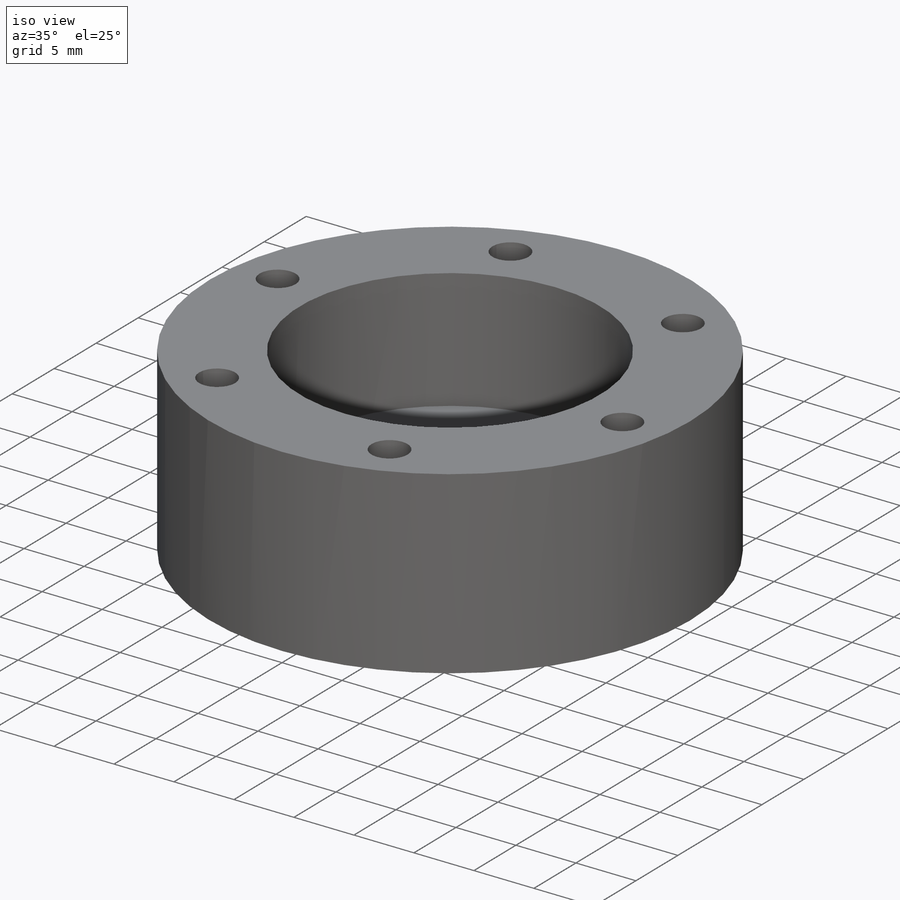
[diagram: iso view]
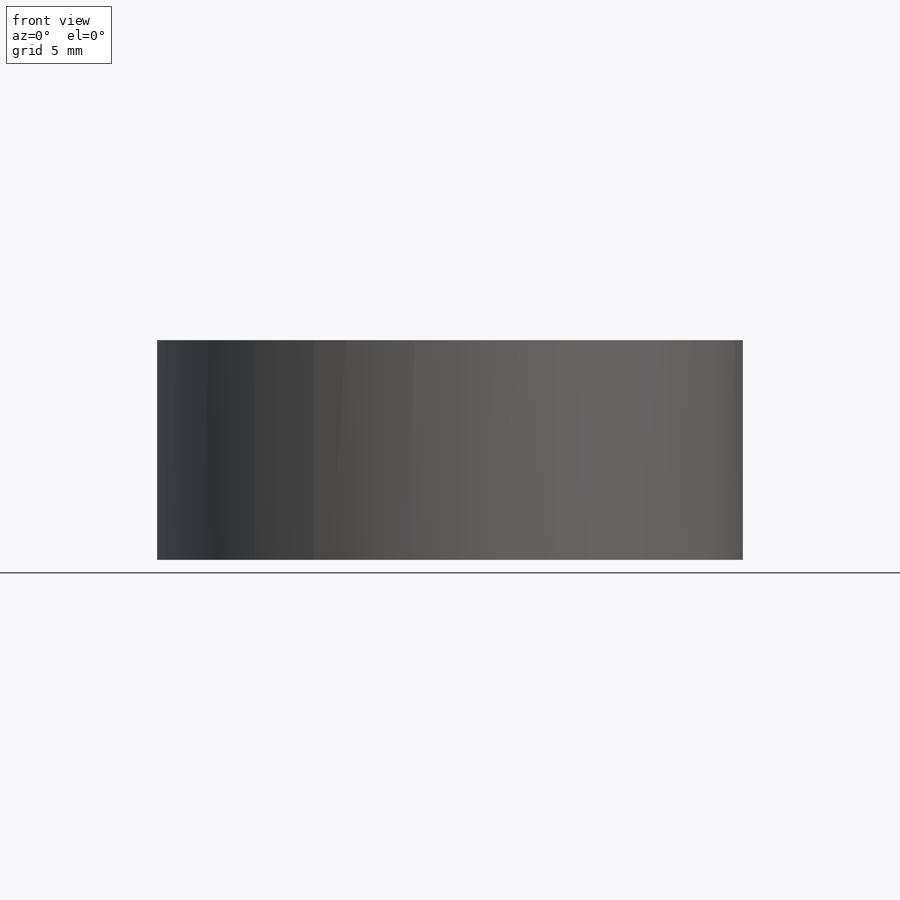
[diagram: front view]
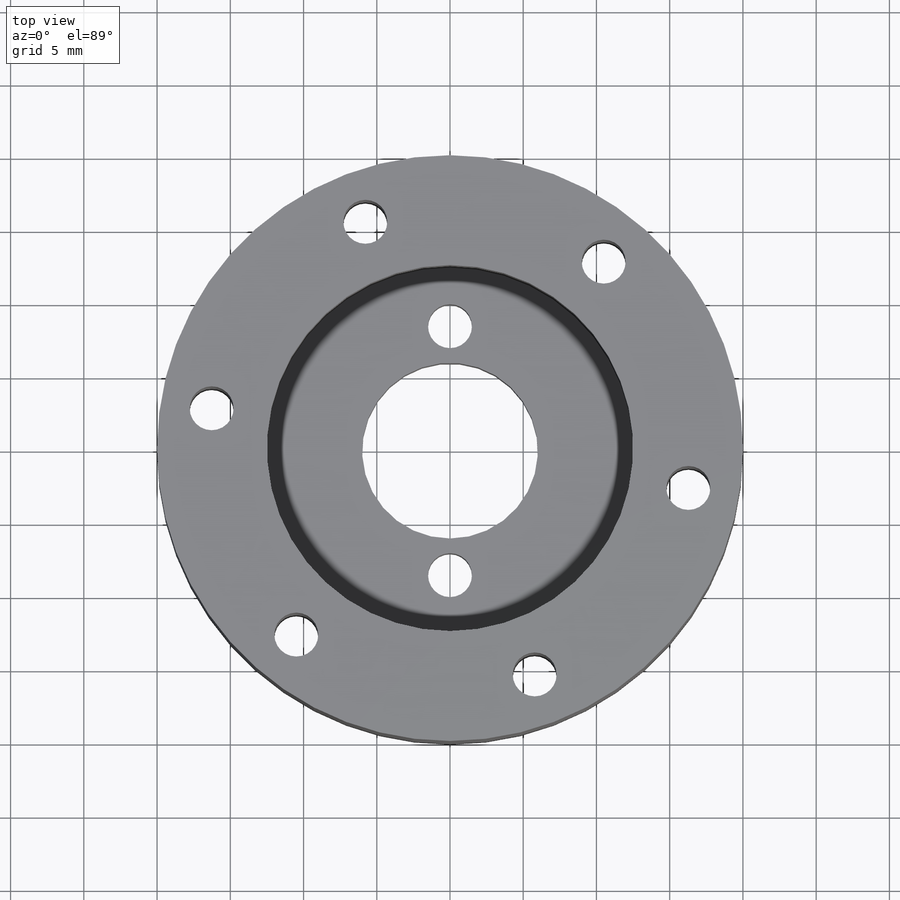
[diagram: top view]
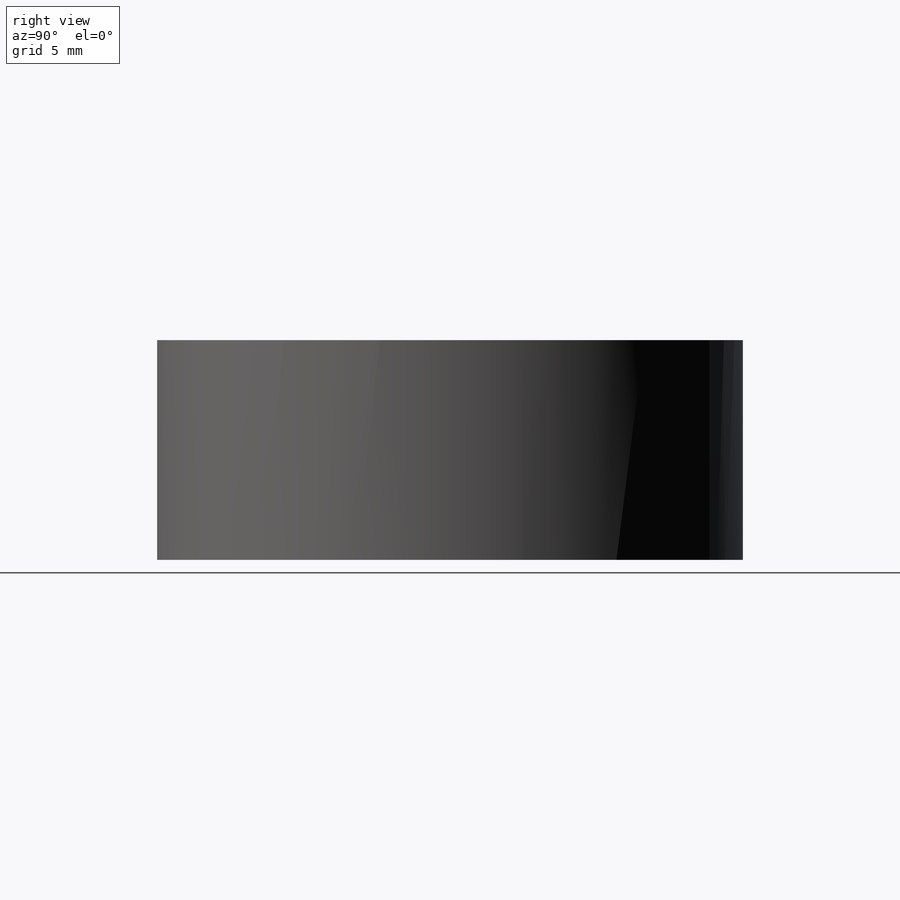
[diagram: right view]
SOLIDWORKS PART (.sldprt)
format: sldprt  version: not decoded by parser v0  size: 201,728 bytes
history: native  units: mm
features: sketch x5, cut_extrude x4, material x1, extrude x1 (+13 scaffold rows collapsed)
feature tree (24):
  scaffold x13  (default folders/planes/origin — collapsed)
  material  "Material <not specified>"
  sketch  "Sketch1"  dims[D1=40.0mm]
  extrude  "Boss-Extrude1"  Depth=15mm
  sketch  "Sketch2"  dims[D1=25.0mm]
  cut_extrude  "Cut-Extrude1"  Depth=10mm
  sketch  "Sketch3"  dims[D1=12.0mm]
  cut_extrude  "Cut-Extrude2"  Depth=5mm
  sketch  "Sketch4"  dims[c1.D2=3.0mm c1.D3=26.0mm c1.D1=16.5mm c2.D3=6.0]
  cut_extrude  "Cut-Extrude3"  Depth=15mm
  sketch  "Sketch5"  dims[D1=3.0mm D2=8.5mm D3=2.0]
  cut_extrude  "Cut-Extrude4"  Depth=5mm
decode coverage: 10 of 10 modeling features carry decoded parameters
note: suppression state not decoded; provenance and decode notes live in map.json
